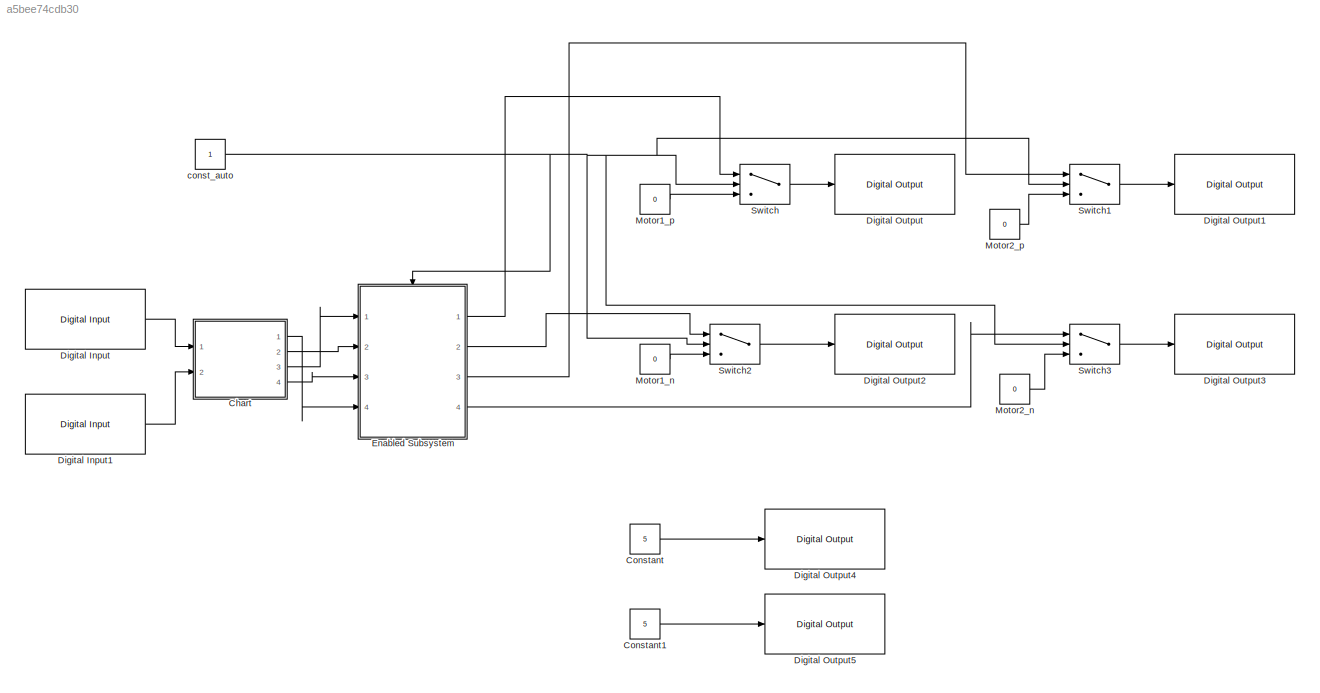
MODEL slx_a5bee74cdb30
KIND model
CONFIG AbsTol = auto
CONFIG FixedStep = auto
CONFIG MaxStep = auto
CONFIG MinStep = auto
CONFIG RelTol = 1e-3
CONFIG SampleTimeConstraint = Unconstrained
CONFIG Solver = FixedStepAuto
CONFIG SolverMode = Auto
CONFIG SolverName = FixedStepAuto
CONFIG StartTime = 0.0
CONFIG StopTime = inf
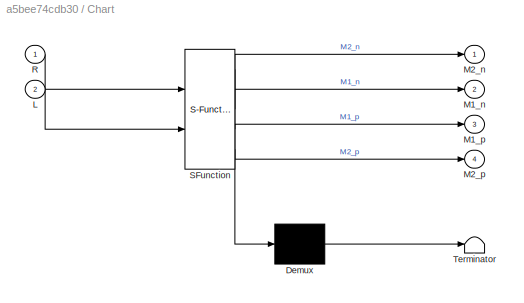
BLOCK [SubSystem] Chart
  ErrorFcn = Stateflow.Translate.translate
  PermitHierarchicalResolution = ExplicitOnly
  Ports = [2, 4]
  RequestExecContextInheritance = off
  SFBlockType = Chart
  TreatAsAtomicUnit = on
  Variant = off
BLOCK [Demux] Chart/ Demux 
  Outputs = 1
  Ports = [1, 1]
BLOCK [S-Function] Chart/ SFunction 
  EnableBusSupport = on
  FunctionName = sf_sfun
  PortCounts = [2 5]
  Ports = [2, 5]
  SFunctionDeploymentMode = off
  Tag = Stateflow S-Function car_simulink 3
BLOCK [Terminator] Chart/ Terminator 
BLOCK [Inport] Chart/L
  IconDisplay = Port number
  Port = 2
BLOCK [Outport] Chart/M1_n
  IconDisplay = Port number
  Port = 2
BLOCK [Outport] Chart/M1_p
  IconDisplay = Port number
  Port = 3
BLOCK [Outport] Chart/M2_n
  IconDisplay = Port number
BLOCK [Outport] Chart/M2_p
  IconDisplay = Port number
  Port = 4
BLOCK [Inport] Chart/R
  IconDisplay = Port number
BLOCK [Constant] Constant
  Value = 5
BLOCK [Constant] Constant1
  Value = 5
BLOCK [Reference] Digital Input  REF=arduinolib/Digital Input
  Ports = [0, 1]
  SourceBlock = arduinolib/Digital Input
  SourceType = Arduino Digital Input
BLOCK [Reference] Digital Input1  REF=arduinolib/Digital Input
  Ports = [0, 1]
  SourceBlock = arduinolib/Digital Input
  SourceType = Arduino Digital Input
BLOCK [Reference] Digital Output  REF=arduinolib/Digital Output
  Ports = [1]
  SourceBlock = arduinolib/Digital Output
  SourceType = Arduino Digital Output
BLOCK [Reference] Digital Output1  REF=arduinolib/Digital Output
  Ports = [1]
  SourceBlock = arduinolib/Digital Output
  SourceType = Arduino Digital Output
BLOCK [Reference] Digital Output2  REF=arduinolib/Digital Output
  Ports = [1]
  SourceBlock = arduinolib/Digital Output
  SourceType = Arduino Digital Output
BLOCK [Reference] Digital Output3  REF=arduinolib/Digital Output
  Ports = [1]
  SourceBlock = arduinolib/Digital Output
  SourceType = Arduino Digital Output
BLOCK [Reference] Digital Output4  REF=arduinolib/Digital Output
  Ports = [1]
  SourceBlock = arduinolib/Digital Output
  SourceType = Arduino Digital Output
BLOCK [Reference] Digital Output5  REF=arduinolib/Digital Output
  Ports = [1]
  SourceBlock = arduinolib/Digital Output
  SourceType = Arduino Digital Output
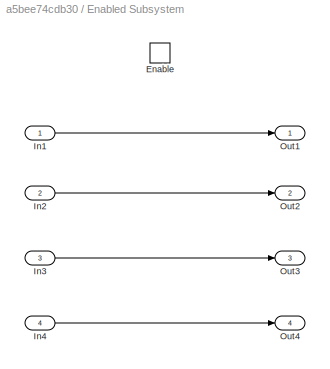
BLOCK [SubSystem] Enabled Subsystem
  Ports = [4, 4, 1]
  RequestExecContextInheritance = off
  TreatAsAtomicUnit = on
  Variant = off
BLOCK [EnablePort] Enabled Subsystem/Enable
  Ports = []
BLOCK [Inport] Enabled Subsystem/In1
  IconDisplay = Port number
BLOCK [Inport] Enabled Subsystem/In2
  IconDisplay = Port number
  Port = 2
BLOCK [Inport] Enabled Subsystem/In3
  IconDisplay = Port number
  Port = 3
BLOCK [Inport] Enabled Subsystem/In4
  IconDisplay = Port number
  Port = 4
BLOCK [Outport] Enabled Subsystem/Out1
  IconDisplay = Port number
BLOCK [Outport] Enabled Subsystem/Out2
  IconDisplay = Port number
  Port = 2
BLOCK [Outport] Enabled Subsystem/Out3
  IconDisplay = Port number
  Port = 3
BLOCK [Outport] Enabled Subsystem/Out4
  IconDisplay = Port number
  Port = 4
BLOCK [Constant] Motor1_n
  Value = 0
BLOCK [Constant] Motor1_p
  Value = 0
BLOCK [Constant] Motor2_n
  Value = 0
BLOCK [Constant] Motor2_p
  Value = 0
BLOCK [Switch] Switch
  Criteria = u2 > Threshold
  InputSameDT = off
  SaturateOnIntegerOverflow = off
BLOCK [Switch] Switch1
  Criteria = u2 > Threshold
  InputSameDT = off
  SaturateOnIntegerOverflow = off
BLOCK [Switch] Switch2
  Criteria = u2 > Threshold
  InputSameDT = off
  SaturateOnIntegerOverflow = off
BLOCK [Switch] Switch3
  Criteria = u2 > Threshold
  InputSameDT = off
  SaturateOnIntegerOverflow = off
BLOCK [Constant] const_auto
LINE Chart:1 -> Enabled Subsystem:4
LINE Chart:2 -> Enabled Subsystem:2
LINE Chart:3 -> Enabled Subsystem:1
LINE Chart:4 -> Enabled Subsystem:3
LINE Constant1:1 -> Digital Output5:1
LINE Constant:1 -> Digital Output4:1
LINE Digital Input1:1 -> Chart:2
LINE Digital Input:1 -> Chart:1
LINE Enabled Subsystem/In1:1 -> Enabled Subsystem/Out1:1
LINE Enabled Subsystem/In2:1 -> Enabled Subsystem/Out2:1
LINE Enabled Subsystem/In3:1 -> Enabled Subsystem/Out3:1
LINE Enabled Subsystem/In4:1 -> Enabled Subsystem/Out4:1
LINE Enabled Subsystem:1 -> Switch:1
LINE Enabled Subsystem:2 -> Switch2:1
LINE Enabled Subsystem:3 -> Switch1:1
LINE Enabled Subsystem:4 -> Switch3:1
LINE Motor1_n:1 -> Switch2:3
LINE Motor1_p:1 -> Switch:3
LINE Motor2_n:1 -> Switch3:3
LINE Motor2_p:1 -> Switch1:3
LINE Switch1:1 -> Digital Output1:1
LINE Switch2:1 -> Digital Output2:1
LINE Switch3:1 -> Digital Output3:1
LINE Switch:1 -> Digital Output:1
NET const_auto:1 -> Enabled Subsystem:enable, Switch1:2, Switch2:2, Switch3:2, Switch:2
note: NET lines group one-source signal fan-out (src -> all destinations, sorted); 1:1 wires keep LINE
CHART Chart states=4 transitions=13
  STATE_LABEL 'Forward\nentry: M1_p =1\n M1_n =0\n M2_p =1\n M2_n =0'
  STATE_LABEL 'Left\nentry: M1_p =0\n M1_n =0\n M2_p =1\n M2_n =0'
  STATE_LABEL 'Right\nentry:  M1_p =1\n  M1_n =0\n  M2_p =0\n  M2_n =0\n'
  STATE_LABEL 'Stop\nentry:  M1_p =0\n  M1_n =0\n  M2_p =0\n  M2_n =0'
